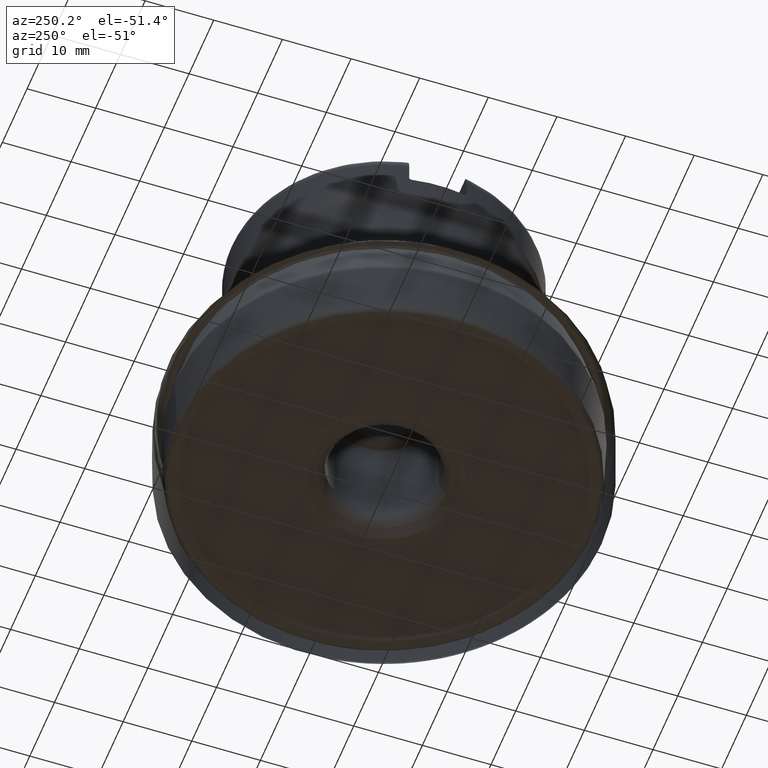
[diagram: clean part render]
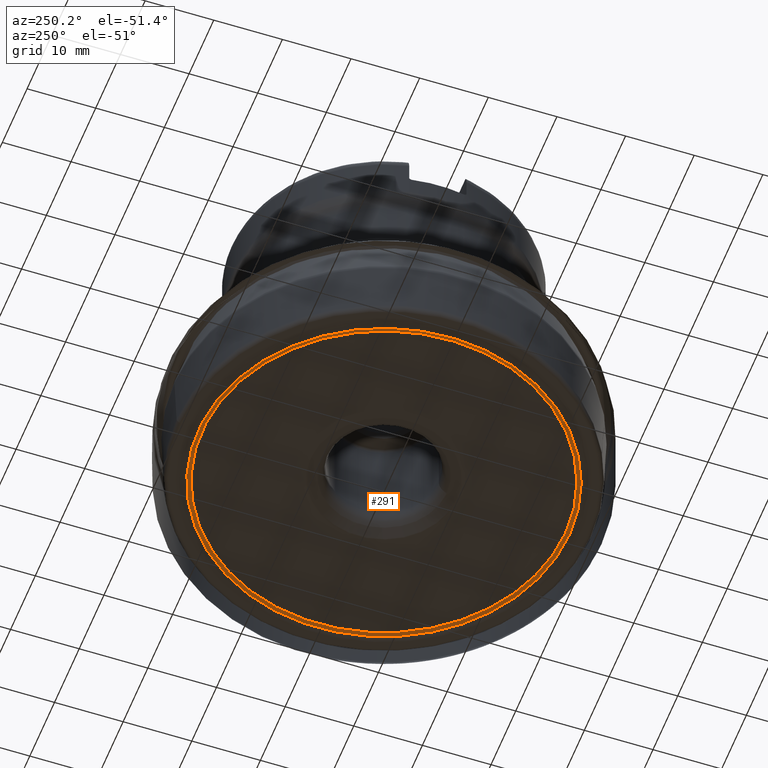
[diagram: same view with one face highlighted and labeled with its STEP entity id]
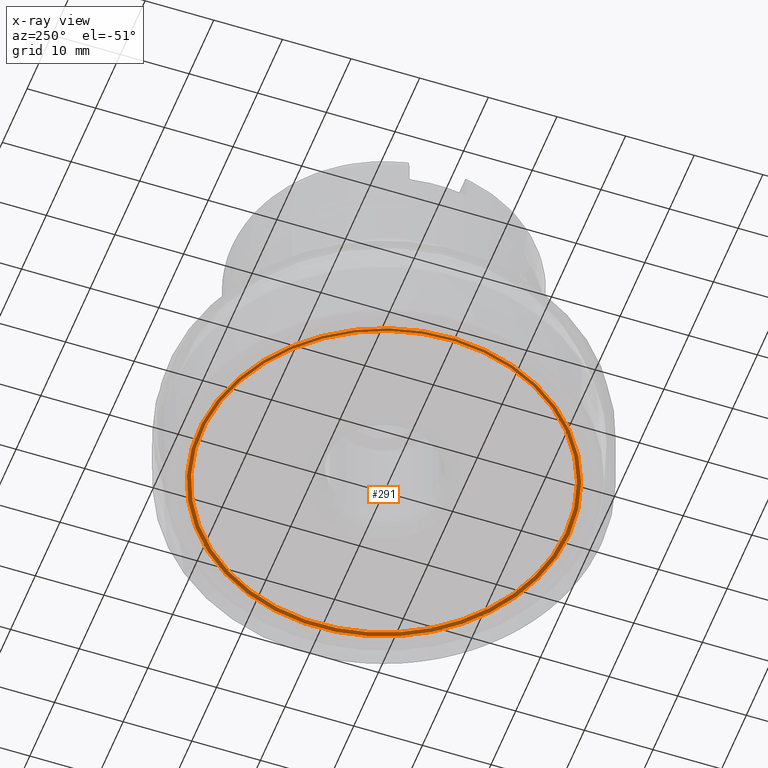
[diagram: x-ray of the same camera — body ghosted, the highlighted face saturated]
A machine part, auxiliary view. The second image highlights one B-rep face of the part: STEP entity #291.
The next image is the same camera in x-ray: the body ghosted, the highlighted face saturated — about 0% of this face is hidden behind the body in this view.
In plain terms, the highlighted face is a SurfaceOfRevolution surface.
Its self-contained STEP definition (entity closure, byte-faithful):
#124=SURFACE_OF_REVOLUTION('',#1151,#145);
#145=AXIS1_PLACEMENT('',#2459,#1536);
#291=ADVANCED_FACE('',(#458,#459),#124,.F.);
#458=FACE_BOUND('',#582,.T.);
#459=FACE_BOUND('',#583,.T.);
#582=EDGE_LOOP('',(#814));
#583=EDGE_LOOP('',(#815));
#814=ORIENTED_EDGE('',*,*,#1029,.T.);
#815=ORIENTED_EDGE('',*,*,#1030,.F.);
#913=VERTEX_POINT('',#2447);
#914=VERTEX_POINT('',#2451);
#1029=EDGE_CURVE('',#913,#913,#1088,.T.);
#1030=EDGE_CURVE('',#914,#914,#1089,.T.);
#1088=CIRCLE('',#1264,27.0413893524992);
#1089=CIRCLE('',#1265,26.4679339664302);
#1151=B_SPLINE_CURVE_WITH_KNOTS('',3,(#2452,#2453,#2454,#2455,#2456,#2457,
#2458),.UNSPECIFIED.,.F.,.F.,(4,1,1,1,4),(0.,0.25,0.5,0.75,1.),
 .UNSPECIFIED.);
#1264=AXIS2_PLACEMENT_3D('',#2446,#1530,#1531);
#1265=AXIS2_PLACEMENT_3D('',#2450,#1534,#1535);
#1530=DIRECTION('',(0.,1.17145536458252E-15,1.));
#1531=DIRECTION('',(0.,-1.,1.17074988359098E-15));
#1534=DIRECTION('',(0.,1.17145536458252E-15,1.));
#1535=DIRECTION('',(0.,-1.,1.17153768678786E-15));
#1536=DIRECTION('',(0.,1.17145536458252E-15,1.));
#2446=CARTESIAN_POINT('',(0.,7.30515716048147E-16,0.623596714082644));
#2447=CARTESIAN_POINT('',(0.,-27.0413893524992,0.623596714082675));
#2450=CARTESIAN_POINT('',(0.,9.08684426946423E-16,0.775688476419462));
#2451=CARTESIAN_POINT('',(0.,-26.4679339664302,0.775688476419493));
#2452=CARTESIAN_POINT('',(26.3366579506027,-2.6328556593446,0.775688515958136));
#2453=CARTESIAN_POINT('',(26.3793464958663,-2.63292366244008,0.751490835375308));
#2454=CARTESIAN_POINT('',(26.4696176236803,-2.63849281432635,0.708094806098118));
#2455=CARTESIAN_POINT('',(26.6138421152613,-2.66163867691846,0.660835360260215));
#2456=CARTESIAN_POINT('',(26.7602543978752,-2.6979732863273,0.632445255975449));
#2457=CARTESIAN_POINT('',(26.8554558220902,-2.72954992231186,0.624883104042237));
#2458=CARTESIAN_POINT('',(26.9015204342815,-2.74680476870706,0.623596714082647));
#2459=CARTESIAN_POINT('',(0.,0.,0.));